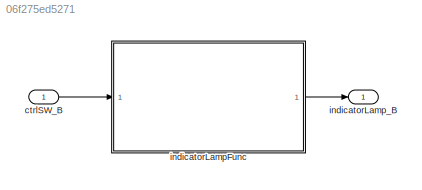
MODEL slx_06f275ed5271
KIND model
CONFIG AbsTol = auto
CONFIG EnableMultiTasking = off
CONFIG FixedStep = 0.01
CONFIG MaxStep = auto
CONFIG MinStep = auto
CONFIG RelTol = 1e-3
CONFIG SampleTimeConstraint = Unconstrained
CONFIG SolverName = FixedStepDiscrete
CONFIG StartTime = 0.0
CONFIG StopTime = 10.0
BLOCK [Inport] ctrlSW_B
  OutDataTypeStr = boolean
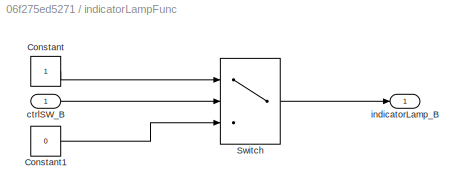
BLOCK [SubSystem] indicatorLampFunc
  RTWFcnNameOpts = Use subsystem name
  RTWFileNameOpts = Use subsystem name
  RTWSystemCode = Reusable function
  TreatAsAtomicUnit = on
BLOCK [Constant] indicatorLampFunc/Constant
  OutDataTypeStr = boolean
BLOCK [Constant] indicatorLampFunc/Constant1
  OutDataTypeStr = boolean
  Value = 0
BLOCK [Switch] indicatorLampFunc/Switch
  Criteria = u2 ~= 0
  InputSameDT = off
  SaturateOnIntegerOverflow = off
BLOCK [Inport] indicatorLampFunc/ctrlSW_B
  OutDataTypeStr = boolean
BLOCK [Outport] indicatorLampFunc/indicatorLamp_B
  OutDataTypeStr = boolean
BLOCK [Outport] indicatorLamp_B
  OutDataTypeStr = boolean
LINE ctrlSW_B:1 -> indicatorLampFunc:1
LINE indicatorLampFunc/Constant1:1 -> indicatorLampFunc/Switch:3
LINE indicatorLampFunc/Constant:1 -> indicatorLampFunc/Switch:1
LINE indicatorLampFunc/Switch:1 -> indicatorLampFunc/indicatorLamp_B:1
LINE indicatorLampFunc/ctrlSW_B:1 -> indicatorLampFunc/Switch:2
LINE indicatorLampFunc:1 -> indicatorLamp_B:1
